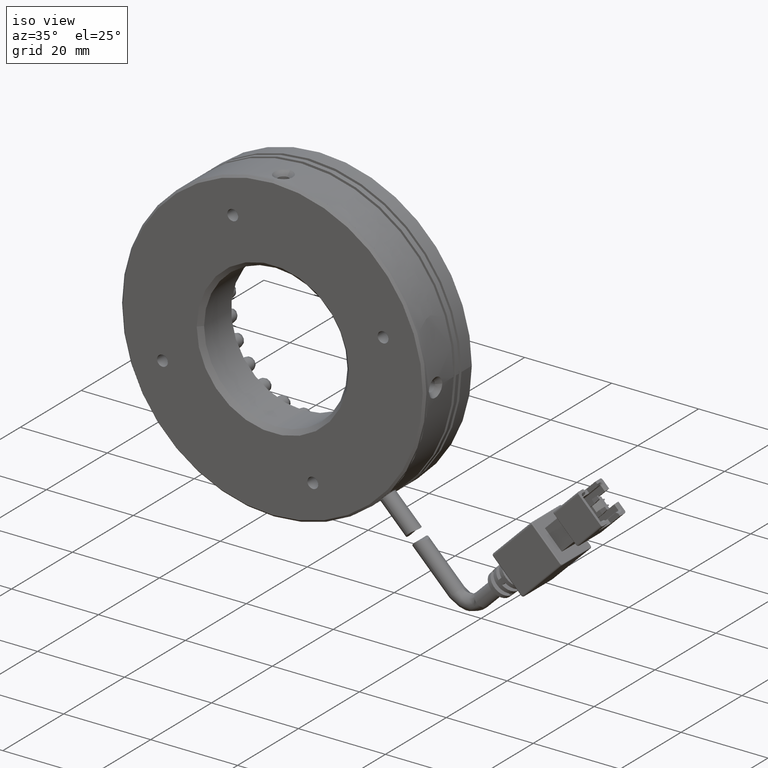
[diagram: clean part render]
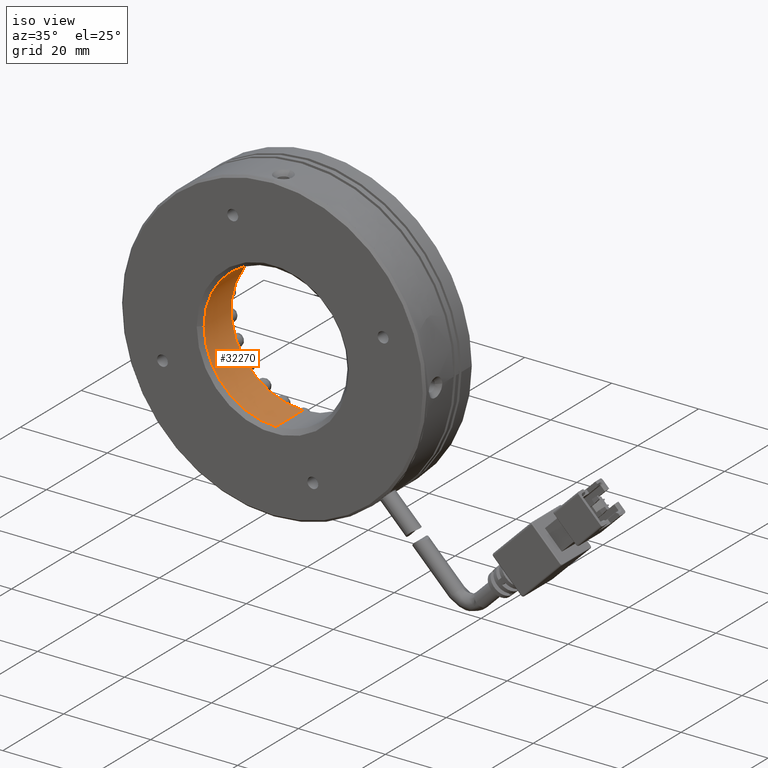
[diagram: same view with one face highlighted and labeled with its STEP entity id]
A machine part, iso view. The second image highlights one B-rep face of the part: STEP entity #32270.
In plain terms, the highlighted cylindrical surface (partial cylindrical patch) has radius 16.5 mm, axis along (-0, 1, -0).
Its self-contained STEP definition (entity closure, byte-faithful):
#2843 = VERTEX_POINT ( 'NONE', #12012 ) ;
#2862 = AXIS2_PLACEMENT_3D ( 'NONE', #38498, #84155, #45009 ) ;
#5000 = FACE_OUTER_BOUND ( 'NONE', #51158, .T. ) ;
#10099 = EDGE_CURVE ( 'NONE', #80126, #51553, #61319, .T. ) ;
#10819 = CARTESIAN_POINT ( 'NONE',  ( -24.92313932795383400, 5.620185881597988600, 16.50000000000000700 ) ) ;
#12012 = CARTESIAN_POINT ( 'NONE',  ( -24.92313932795383400, -3.279814118401988700, 16.50000000000000700 ) ) ;
#13716 = CARTESIAN_POINT ( 'NONE',  ( -41.42313932795384100, -3.279814118401988700, 2.081899558550501900E-015 ) ) ;
#14969 = EDGE_CURVE ( 'NONE', #53001, #51553, #66699, .T. ) ;
#17360 = CIRCLE ( 'NONE', #57316, 16.50000000000000700 ) ;
#21167 = CARTESIAN_POINT ( 'NONE',  ( -24.92313932795383400, 5.620185881597988600, 0.0000000000000000000 ) ) ;
#22826 = LINE ( 'NONE', #47404, #60586 ) ;
#24593 = VECTOR ( 'NONE', #77363, 1000.000000000000000 ) ;
#25465 = ORIENTED_EDGE ( 'NONE', *, *, #43207, .T. ) ;
#27786 = DIRECTION ( 'NONE',  ( 0.0000000000000000000, 0.0000000000000000000, 1.000000000000000000 ) ) ;
#31103 = CARTESIAN_POINT ( 'NONE',  ( -24.92313932795383400, 45.88112954314367200, 0.0000000000000000000 ) ) ;
#32270 = ADVANCED_FACE ( 'NONE', ( #5000 ), #49123, .F. ) ;
#36139 = DIRECTION ( 'NONE',  ( -0.0000000000000000000, -1.000000000000000000, -0.0000000000000000000 ) ) ;
#36632 = CIRCLE ( 'NONE', #2862, 16.50000000000000700 ) ;
#36794 = AXIS2_PLACEMENT_3D ( 'NONE', #21167, #66924, #27786 ) ;
#36915 = VERTEX_POINT ( 'NONE', #13716 ) ;
#38498 = CARTESIAN_POINT ( 'NONE',  ( -24.92313932795383400, -3.279814118401988700, 0.0000000000000000000 ) ) ;
#40217 = ORIENTED_EDGE ( 'NONE', *, *, #75844, .F. ) ;
#43207 = EDGE_CURVE ( 'NONE', #2843, #36915, #36632, .T. ) ;
#45009 = DIRECTION ( 'NONE',  ( 0.0000000000000000000, 0.0000000000000000000, -1.000000000000000000 ) ) ;
#47404 = CARTESIAN_POINT ( 'NONE',  ( -24.92313932795383400, 45.88112954314367200, 16.50000000000000700 ) ) ;
#49123 = CYLINDRICAL_SURFACE ( 'NONE', #84939, 16.50000000000000700 ) ;
#51158 = EDGE_LOOP ( 'NONE', ( #25465, #65688, #70038, #51693, #40217 ) ) ;
#51553 = VERTEX_POINT ( 'NONE', #64899 ) ;
#51693 = ORIENTED_EDGE ( 'NONE', *, *, #14969, .F. ) ;
#53001 = VERTEX_POINT ( 'NONE', #10819 ) ;
#53941 = DIRECTION ( 'NONE',  ( -0.0000000000000000000, 1.000000000000000000, -0.0000000000000000000 ) ) ;
#57027 = DIRECTION ( 'NONE',  ( -0.0000000000000000000, 1.000000000000000000, -0.0000000000000000000 ) ) ;
#57303 = DIRECTION ( 'NONE',  ( 0.0000000000000000000, 0.0000000000000000000, 1.000000000000000000 ) ) ;
#57316 = AXIS2_PLACEMENT_3D ( 'NONE', #75241, #36139, #81803 ) ;
#60586 = VECTOR ( 'NONE', #53941, 1000.000000000000000 ) ;
#61319 = LINE ( 'NONE', #84487, #24593 ) ;
#62434 = EDGE_CURVE ( 'NONE', #36915, #80126, #17360, .T. ) ;
#64899 = CARTESIAN_POINT ( 'NONE',  ( -24.92313932795383000, 5.620185881597988600, -16.50000000000000700 ) ) ;
#65688 = ORIENTED_EDGE ( 'NONE', *, *, #62434, .T. ) ;
#66699 = CIRCLE ( 'NONE', #36794, 16.50000000000000700 ) ;
#66924 = DIRECTION ( 'NONE',  ( 0.0000000000000000000, -1.000000000000000000, 0.0000000000000000000 ) ) ;
#70038 = ORIENTED_EDGE ( 'NONE', *, *, #10099, .T. ) ;
#72857 = CARTESIAN_POINT ( 'NONE',  ( -24.92313932795383000, -3.279814118401988700, -16.50000000000000700 ) ) ;
#75241 = CARTESIAN_POINT ( 'NONE',  ( -24.92313932795383400, -3.279814118401988700, 0.0000000000000000000 ) ) ;
#75844 = EDGE_CURVE ( 'NONE', #2843, #53001, #22826, .T. ) ;
#77363 = DIRECTION ( 'NONE',  ( -0.0000000000000000000, 1.000000000000000000, -0.0000000000000000000 ) ) ;
#80126 = VERTEX_POINT ( 'NONE', #72857 ) ;
#81803 = DIRECTION ( 'NONE',  ( 0.0000000000000000000, 0.0000000000000000000, -1.000000000000000000 ) ) ;
#84155 = DIRECTION ( 'NONE',  ( -0.0000000000000000000, -1.000000000000000000, -0.0000000000000000000 ) ) ;
#84487 = CARTESIAN_POINT ( 'NONE',  ( -24.92313932795383000, 45.88112954314367200, -16.50000000000000700 ) ) ;
#84939 = AXIS2_PLACEMENT_3D ( 'NONE', #31103, #57027, #57303 ) ;